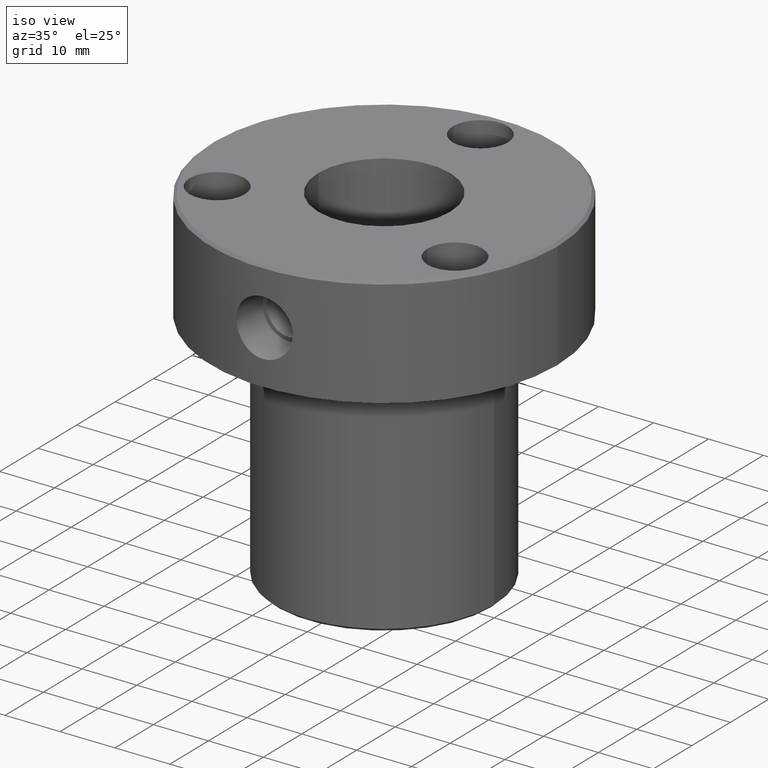
[diagram: clean part render]
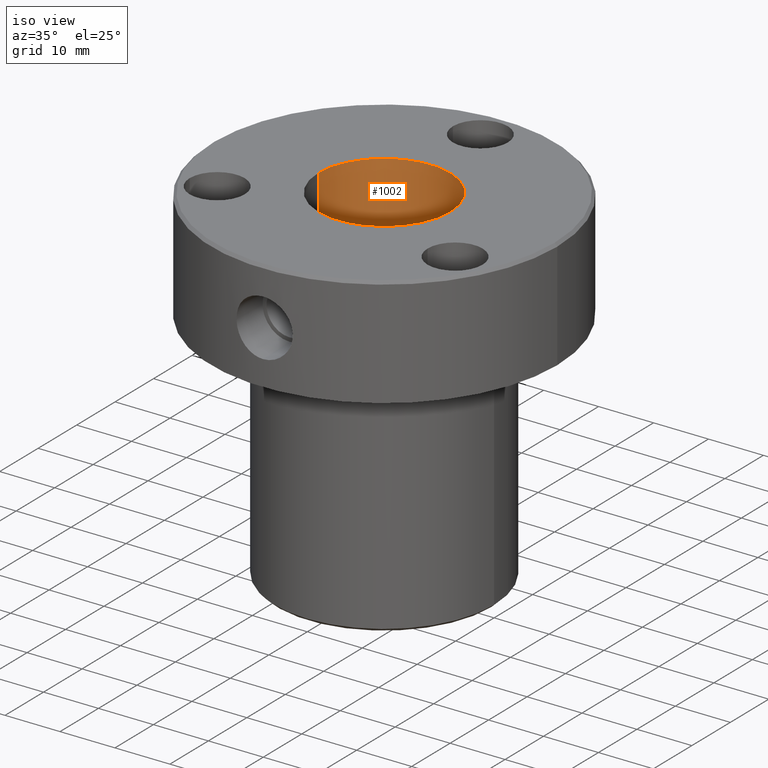
[diagram: same view with one face highlighted and labeled with its STEP entity id]
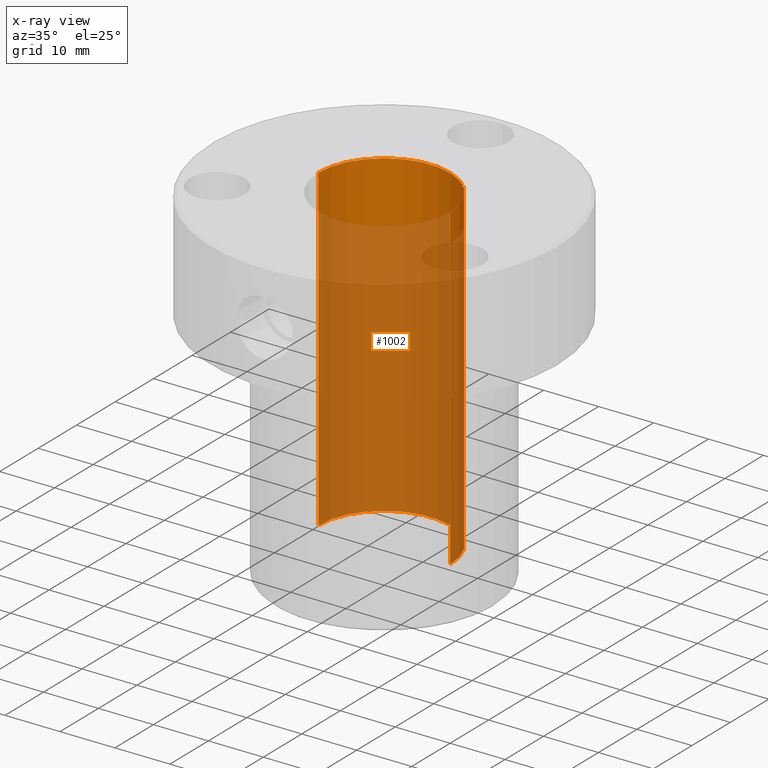
[diagram: x-ray of the same camera — body ghosted, the highlighted face saturated]
A machine part, iso view. The second image highlights one B-rep face of the part: STEP entity #1002.
The next image is the same camera in x-ray: the body ghosted, the highlighted face saturated — about 83% of this face is hidden behind the body in this view.
In plain terms, the highlighted cylindrical surface (partial cylindrical patch) has radius 12 mm, axis along (-0, -0, -1).
Its self-contained STEP definition (entity closure, byte-faithful):
#3 = DIRECTION ( 'NONE',  ( -0.000000000000000000, -0.000000000000000000, -1.000000000000000000 ) ) ;
#39 = CYLINDRICAL_SURFACE ( 'NONE', #407, 12.00000000000000178 ) ;
#48 = LINE ( 'NONE', #385, #1230 ) ;
#63 = ORIENTED_EDGE ( 'NONE', *, *, #300, .F. ) ;
#82 = CIRCLE ( 'NONE', #169, 12.00000000000000178 ) ;
#100 = AXIS2_PLACEMENT_3D ( 'NONE', #814, #241, #1196 ) ;
#169 = AXIS2_PLACEMENT_3D ( 'NONE', #488, #1080, #411 ) ;
#241 = DIRECTION ( 'NONE',  ( 0.000000000000000000, 0.000000000000000000, -1.000000000000000000 ) ) ;
#264 = EDGE_LOOP ( 'NONE', ( #63, #647, #500, #815 ) ) ;
#300 = EDGE_CURVE ( 'NONE', #561, #547, #48, .T. ) ;
#345 = CARTESIAN_POINT ( 'NONE',  ( 0.000000000000000000, 0.000000000000000000, 0.000000000000000000 ) ) ;
#385 = CARTESIAN_POINT ( 'NONE',  ( 12.00000000000000178, 1.469576158976824144E-15, 0.000000000000000000 ) ) ;
#390 = DIRECTION ( 'NONE',  ( -0.000000000000000000, -0.000000000000000000, -1.000000000000000000 ) ) ;
#393 = CIRCLE ( 'NONE', #100, 12.00000000000000178 ) ;
#407 = AXIS2_PLACEMENT_3D ( 'NONE', #345, #1133, #765 ) ;
#411 = DIRECTION ( 'NONE',  ( -1.000000000000000000, 0.000000000000000000, 0.000000000000000000 ) ) ;
#473 = CARTESIAN_POINT ( 'NONE',  ( -12.00000000000000178, 0.000000000000000000, 0.000000000000000000 ) ) ;
#488 = CARTESIAN_POINT ( 'NONE',  ( 0.000000000000000000, 0.000000000000000000, 0.000000000000000000 ) ) ;
#500 = ORIENTED_EDGE ( 'NONE', *, *, #1056, .T. ) ;
#507 = CARTESIAN_POINT ( 'NONE',  ( 12.00000000000000178, 1.469576158976824144E-15, -58.00000000000000000 ) ) ;
#524 = FACE_OUTER_BOUND ( 'NONE', #264, .T. ) ;
#547 = VERTEX_POINT ( 'NONE', #507 ) ;
#561 = VERTEX_POINT ( 'NONE', #907 ) ;
#609 = EDGE_CURVE ( 'NONE', #1113, #547, #393, .T. ) ;
#647 = ORIENTED_EDGE ( 'NONE', *, *, #1212, .F. ) ;
#671 = LINE ( 'NONE', #473, #898 ) ;
#738 = CARTESIAN_POINT ( 'NONE',  ( -12.00000000000000178, 0.000000000000000000, 0.000000000000000000 ) ) ;
#765 = DIRECTION ( 'NONE',  ( -1.000000000000000000, 0.000000000000000000, 0.000000000000000000 ) ) ;
#769 = CARTESIAN_POINT ( 'NONE',  ( -12.00000000000000178, 0.000000000000000000, -58.00000000000000000 ) ) ;
#814 = CARTESIAN_POINT ( 'NONE',  ( 0.000000000000000000, 0.000000000000000000, -58.00000000000000000 ) ) ;
#815 = ORIENTED_EDGE ( 'NONE', *, *, #609, .T. ) ;
#898 = VECTOR ( 'NONE', #390, 1000.000000000000000 ) ;
#907 = CARTESIAN_POINT ( 'NONE',  ( 12.00000000000000178, 1.469576158976824144E-15, 0.000000000000000000 ) ) ;
#913 = VERTEX_POINT ( 'NONE', #738 ) ;
#1002 = ADVANCED_FACE ( 'NONE', ( #524 ), #39, .F. ) ;
#1056 = EDGE_CURVE ( 'NONE', #913, #1113, #671, .T. ) ;
#1080 = DIRECTION ( 'NONE',  ( 0.000000000000000000, 0.000000000000000000, -1.000000000000000000 ) ) ;
#1113 = VERTEX_POINT ( 'NONE', #769 ) ;
#1133 = DIRECTION ( 'NONE',  ( -0.000000000000000000, -0.000000000000000000, -1.000000000000000000 ) ) ;
#1196 = DIRECTION ( 'NONE',  ( -1.000000000000000000, 0.000000000000000000, 0.000000000000000000 ) ) ;
#1212 = EDGE_CURVE ( 'NONE', #913, #561, #82, .T. ) ;
#1230 = VECTOR ( 'NONE', #3, 1000.000000000000000 ) ;